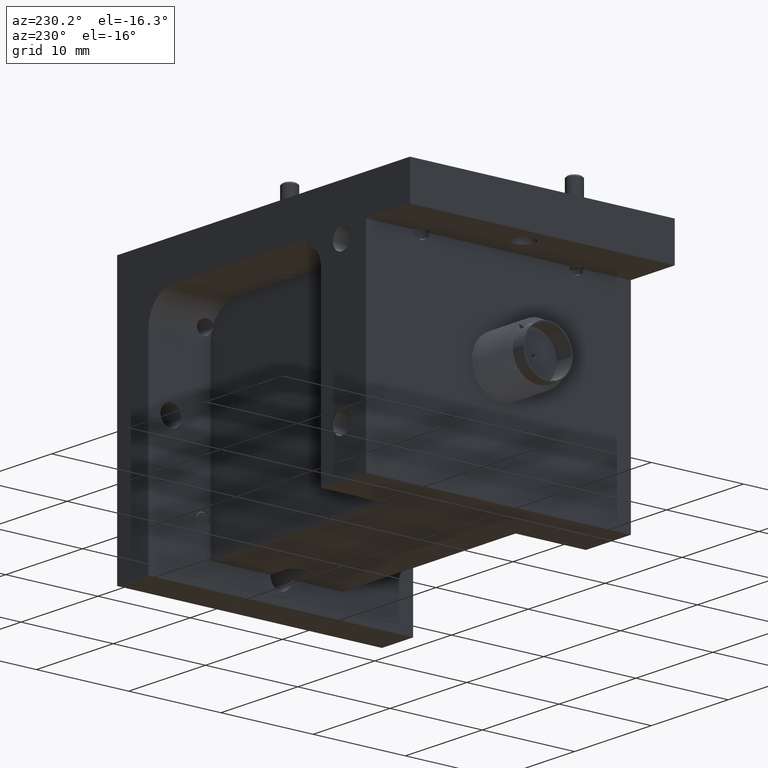
[diagram: clean part render]
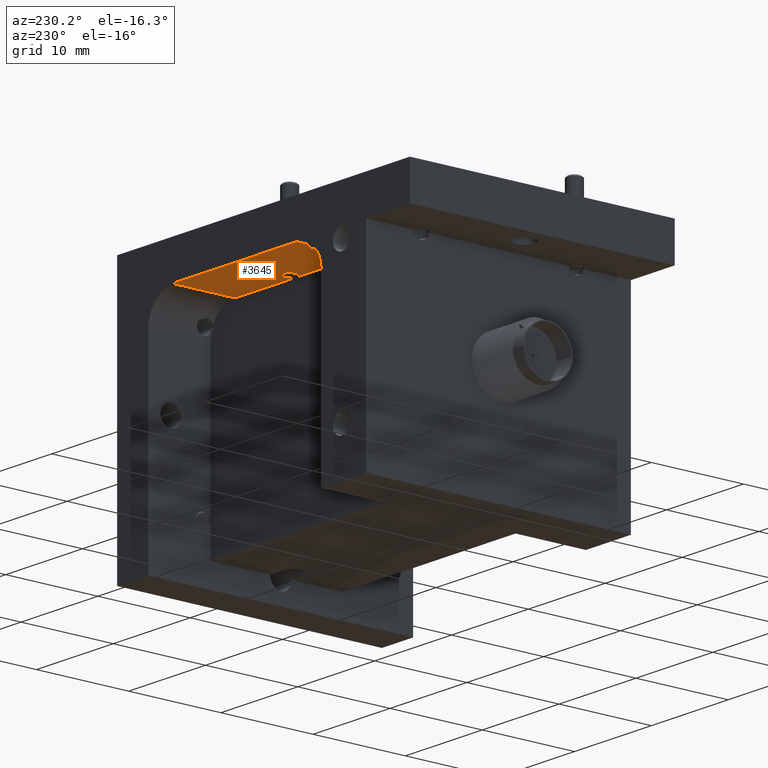
[diagram: same view with one face highlighted and labeled with its STEP entity id]
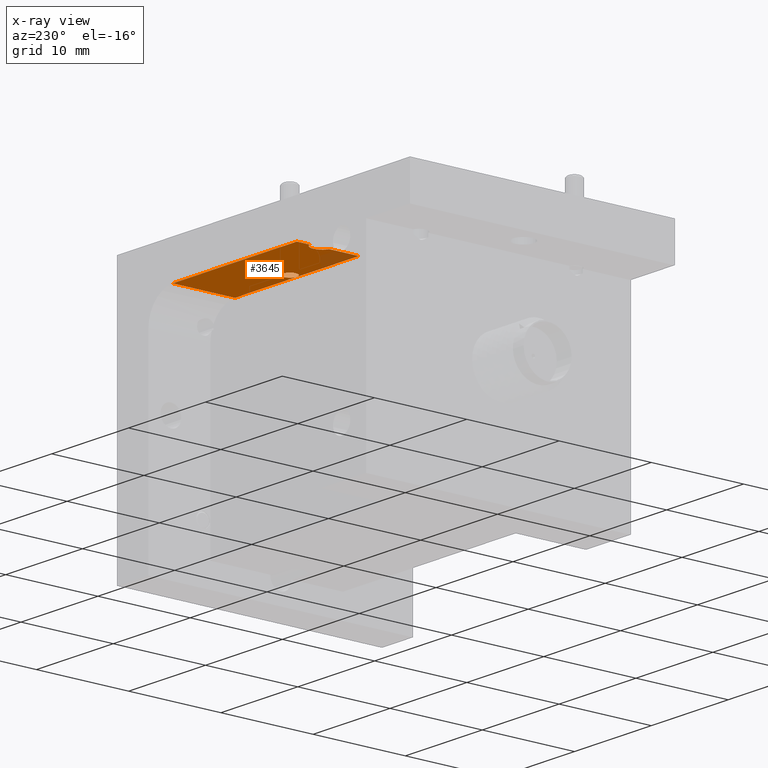
[diagram: x-ray of the same camera — body ghosted, the highlighted face saturated]
A machine part, auxiliary view. The second image highlights one B-rep face of the part: STEP entity #3645.
The next image is the same camera in x-ray: the body ghosted, the highlighted face saturated — about 8% of this face is hidden behind the body in this view.
In plain terms, the highlighted planar face has unit normal (-0, 0, 1).
Its self-contained STEP definition (entity closure, byte-faithful):
#944 = VECTOR ( 'NONE', #16244, 39.37007874015748100 ) ;
#965 = EDGE_CURVE ( 'NONE', #30184, #1353, #29697, .T. ) ;
#1049 = CARTESIAN_POINT ( 'NONE',  ( -0.2950000000000001500, 0.8649999999999997700, 0.4050000000000001400 ) ) ;
#1316 = VERTEX_POINT ( 'NONE', #8601 ) ;
#1353 = VERTEX_POINT ( 'NONE', #23180 ) ;
#1966 = DIRECTION ( 'NONE',  ( -0.0000000000000000000, 0.0000000000000000000, 1.000000000000000000 ) ) ;
#2371 = VECTOR ( 'NONE', #28613, 39.37007874015748100 ) ;
#2578 = VERTEX_POINT ( 'NONE', #6793 ) ;
#2589 = AXIS2_PLACEMENT_3D ( 'NONE', #13420, #21163, #13637 ) ;
#2670 = CARTESIAN_POINT ( 'NONE',  ( 0.1762063036811950000, 0.8964563036811924500, 0.4050000000000001400 ) ) ;
#2948 = LINE ( 'NONE', #8117, #12875 ) ;
#3021 = DIRECTION ( 'NONE',  ( -0.0000000000000000000, 0.0000000000000000000, 1.000000000000000000 ) ) ;
#3072 = VERTEX_POINT ( 'NONE', #4076 ) ;
#3127 = ORIENTED_EDGE ( 'NONE', *, *, #965, .T. ) ;
#3467 = EDGE_CURVE ( 'NONE', #26470, #2578, #17724, .T. ) ;
#3645 = ADVANCED_FACE ( 'NONE', ( #6630, #30730 ), #12448, .F. ) ;
#4076 = CARTESIAN_POINT ( 'NONE',  ( -0.1700000000000001800, 1.075645703837028200, 0.4050000000000001400 ) ) ;
#4356 = CARTESIAN_POINT ( 'NONE',  ( 0.4650000000000001400, 0.8649999999999997700, 0.4050000000000001400 ) ) ;
#5423 = DIRECTION ( 'NONE',  ( 1.000000000000000000, 0.0000000000000000000, 0.0000000000000000000 ) ) ;
#5657 = CIRCLE ( 'NONE', #2589, 0.04449999999999975500 ) ;
#6163 = CIRCLE ( 'NONE', #24559, 0.04449999999999975500 ) ;
#6353 = ORIENTED_EDGE ( 'NONE', *, *, #11962, .T. ) ;
#6630 = FACE_BOUND ( 'NONE', #22948, .T. ) ;
#6793 = CARTESIAN_POINT ( 'NONE',  ( 0.1167063036811954600, 0.8964563036811924500, 0.4050000000000001400 ) ) ;
#8117 = CARTESIAN_POINT ( 'NONE',  ( -0.1700000000000001800, 1.129999999999999900, 0.4050000000000001400 ) ) ;
#8601 = CARTESIAN_POINT ( 'NONE',  ( -0.1700000000000001800, 0.8649999999999997700, 0.4050000000000001400 ) ) ;
#10198 = CARTESIAN_POINT ( 'NONE',  ( -0.1700000000000001800, 1.129999999999999900, 0.4050000000000001400 ) ) ;
#10925 = ORIENTED_EDGE ( 'NONE', *, *, #11838, .T. ) ;
#11838 = EDGE_CURVE ( 'NONE', #3072, #30184, #2948, .T. ) ;
#11962 = EDGE_CURVE ( 'NONE', #27750, #17877, #5657, .T. ) ;
#12448 = PLANE ( 'NONE',  #14080 ) ;
#12875 = VECTOR ( 'NONE', #27896, 39.37007874015748100 ) ;
#13420 = CARTESIAN_POINT ( 'NONE',  ( -0.1850000000000005800, 1.033750000000000200, 0.4050000000000001400 ) ) ;
#13438 = CARTESIAN_POINT ( 'NONE',  ( 0.1464563036811952200, 0.8964563036811924500, 0.4050000000000001400 ) ) ;
#13637 = DIRECTION ( 'NONE',  ( 1.000000000000000000, 0.0000000000000000000, 0.0000000000000000000 ) ) ;
#13863 = CARTESIAN_POINT ( 'NONE',  ( 0.4650000000000002500, 0.8649999999999997700, 0.4050000000000001400 ) ) ;
#14080 = AXIS2_PLACEMENT_3D ( 'NONE', #24796, #1966, #26923 ) ;
#14192 = EDGE_CURVE ( 'NONE', #1316, #29294, #27764, .T. ) ;
#14999 = CARTESIAN_POINT ( 'NONE',  ( -0.1405000000000008200, 1.033750000000000200, 0.4050000000000001400 ) ) ;
#15699 = CARTESIAN_POINT ( 'NONE',  ( -0.1700000000000001800, 0.9918542961629721600, 0.4050000000000001400 ) ) ;
#16244 = DIRECTION ( 'NONE',  ( 1.000000000000000000, 0.0000000000000000000, 0.0000000000000000000 ) ) ;
#16806 = LINE ( 'NONE', #19516, #20282 ) ;
#17724 = CIRCLE ( 'NONE', #21083, 0.02974999999999976600 ) ;
#17877 = VERTEX_POINT ( 'NONE', #14999 ) ;
#18530 = DIRECTION ( 'NONE',  ( 1.000000000000000000, 0.0000000000000000000, 0.0000000000000000000 ) ) ;
#18978 = EDGE_CURVE ( 'NONE', #1353, #29294, #24594, .T. ) ;
#19516 = CARTESIAN_POINT ( 'NONE',  ( -0.1700000000000001800, 1.129999999999999900, 0.4050000000000001400 ) ) ;
#20282 = VECTOR ( 'NONE', #24314, 39.37007874015748100 ) ;
#20350 = ORIENTED_EDGE ( 'NONE', *, *, #22350, .T. ) ;
#20901 = ORIENTED_EDGE ( 'NONE', *, *, #21369, .T. ) ;
#21083 = AXIS2_PLACEMENT_3D ( 'NONE', #23296, #30343, #23404 ) ;
#21163 = DIRECTION ( 'NONE',  ( -0.0000000000000000000, 0.0000000000000000000, 1.000000000000000000 ) ) ;
#21369 = EDGE_CURVE ( 'NONE', #17877, #3072, #6163, .T. ) ;
#22350 = EDGE_CURVE ( 'NONE', #1316, #27750, #16806, .T. ) ;
#22948 = EDGE_LOOP ( 'NONE', ( #29014, #26692 ) ) ;
#23180 = CARTESIAN_POINT ( 'NONE',  ( 0.4650000000000002500, 1.129999999999999900, 0.4050000000000001400 ) ) ;
#23296 = CARTESIAN_POINT ( 'NONE',  ( 0.1464563036811952200, 0.8964563036811924500, 0.4050000000000001400 ) ) ;
#23404 = DIRECTION ( 'NONE',  ( 1.000000000000000000, 0.0000000000000000000, 0.0000000000000000000 ) ) ;
#24314 = DIRECTION ( 'NONE',  ( 0.0000000000000000000, 1.000000000000000000, -0.0000000000000000000 ) ) ;
#24349 = EDGE_LOOP ( 'NONE', ( #20350, #6353, #20901, #10925, #3127, #27008, #27564 ) ) ;
#24559 = AXIS2_PLACEMENT_3D ( 'NONE', #30294, #3021, #5423 ) ;
#24594 = LINE ( 'NONE', #4356, #2371 ) ;
#24796 = CARTESIAN_POINT ( 'NONE',  ( -0.2950000000000001500, 0.8649999999999997700, 0.4050000000000001400 ) ) ;
#25571 = DIRECTION ( 'NONE',  ( 1.000000000000000000, 0.0000000000000000000, 0.0000000000000000000 ) ) ;
#26470 = VERTEX_POINT ( 'NONE', #2670 ) ;
#26692 = ORIENTED_EDGE ( 'NONE', *, *, #27636, .T. ) ;
#26923 = DIRECTION ( 'NONE',  ( 1.000000000000000000, 0.0000000000000000000, 0.0000000000000000000 ) ) ;
#27008 = ORIENTED_EDGE ( 'NONE', *, *, #18978, .T. ) ;
#27431 = AXIS2_PLACEMENT_3D ( 'NONE', #13438, #30475, #25571 ) ;
#27564 = ORIENTED_EDGE ( 'NONE', *, *, #14192, .F. ) ;
#27636 = EDGE_CURVE ( 'NONE', #2578, #26470, #27996, .T. ) ;
#27750 = VERTEX_POINT ( 'NONE', #15699 ) ;
#27764 = LINE ( 'NONE', #1049, #31617 ) ;
#27896 = DIRECTION ( 'NONE',  ( 0.0000000000000000000, 1.000000000000000000, -0.0000000000000000000 ) ) ;
#27996 = CIRCLE ( 'NONE', #27431, 0.02974999999999976600 ) ;
#28613 = DIRECTION ( 'NONE',  ( -0.0000000000000000000, -1.000000000000000000, 0.0000000000000000000 ) ) ;
#29014 = ORIENTED_EDGE ( 'NONE', *, *, #3467, .T. ) ;
#29294 = VERTEX_POINT ( 'NONE', #13863 ) ;
#29697 = LINE ( 'NONE', #30930, #944 ) ;
#30184 = VERTEX_POINT ( 'NONE', #10198 ) ;
#30294 = CARTESIAN_POINT ( 'NONE',  ( -0.1850000000000005800, 1.033750000000000200, 0.4050000000000001400 ) ) ;
#30343 = DIRECTION ( 'NONE',  ( -0.0000000000000000000, 0.0000000000000000000, 1.000000000000000000 ) ) ;
#30475 = DIRECTION ( 'NONE',  ( -0.0000000000000000000, 0.0000000000000000000, 1.000000000000000000 ) ) ;
#30730 = FACE_OUTER_BOUND ( 'NONE', #24349, .T. ) ;
#30930 = CARTESIAN_POINT ( 'NONE',  ( -0.2950000000000001500, 1.129999999999999900, 0.4050000000000001400 ) ) ;
#31617 = VECTOR ( 'NONE', #18530, 39.37007874015748100 ) ;